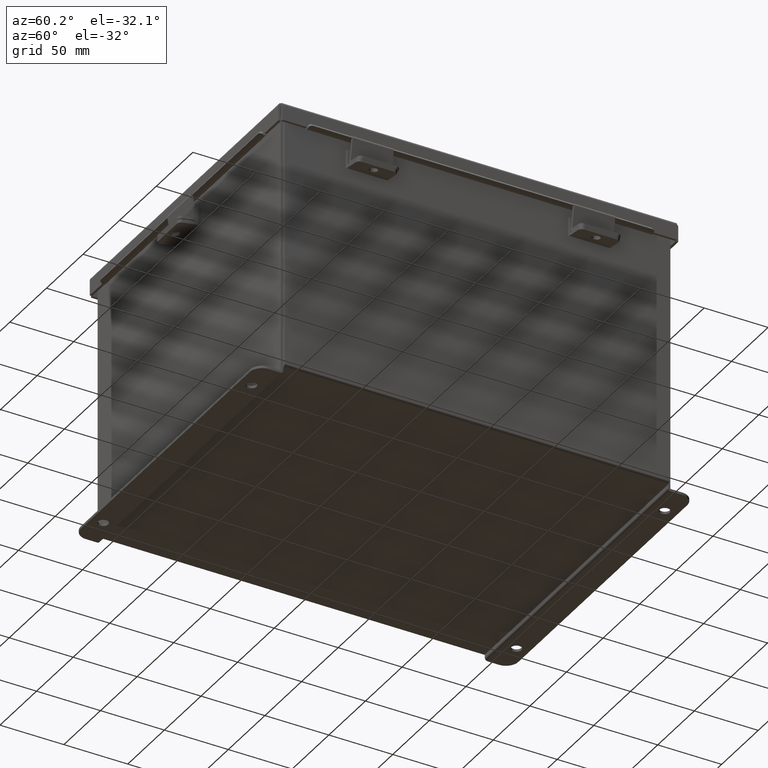
[diagram: clean part render]
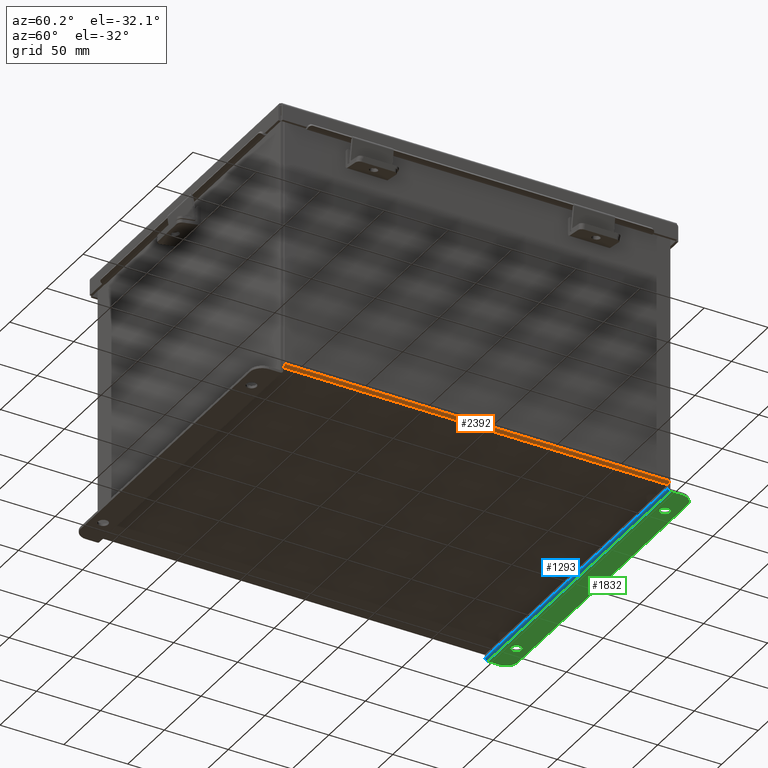
[diagram: same view with three faces highlighted in distinct colors, each labeled with its STEP entity id]
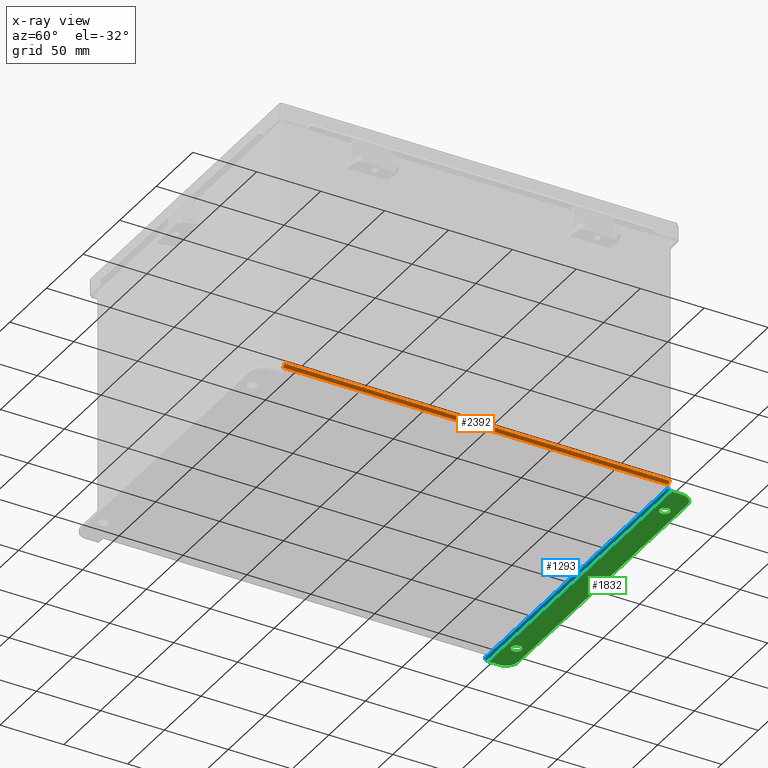
[diagram: x-ray of the same camera — body ghosted, the three highlighted faces saturated]
A machine part, auxiliary view with three faces highlighted in distinct colors.
The next image is the same camera in x-ray (body ghosted, the three faces saturated) — at least one of them is partly hidden behind the body in this view.
Their STEP definitions:

[orange] entity #2392 — the highlighted cylindrical surface (edge-blend (fillet) strip) has radius 2.2276 mm, axis along (0, 1, 0).
#75 = CARTESIAN_POINT ( 'NONE',  ( 4.912300000000000100, 5.925299999999997300, -0.07469999999999994700 ) ) ;
#308 = DIRECTION ( 'NONE',  ( 0.0000000000000000000, 1.000000000000000000, 0.0000000000000000000 ) ) ;
#767 = FACE_OUTER_BOUND ( 'NONE', #6413, .T. ) ;
#1550 = DIRECTION ( 'NONE',  ( 1.000000000000000000, 0.0000000000000000000, -3.480030137311043200E-015 ) ) ;
#1715 = CYLINDRICAL_SURFACE ( 'NONE', #2982, 0.08770000000000026400 ) ;
#2161 = VERTEX_POINT ( 'NONE', #8694 ) ;
#2247 = CIRCLE ( 'NONE', #6147, 0.08770000000000009700 ) ;
#2392 = ADVANCED_FACE ( 'NONE', ( #767 ), #1715, .T. ) ;
#2431 = CARTESIAN_POINT ( 'NONE',  ( 5.000000000000000000, -5.925300000000000000, 0.01299999999999984300 ) ) ;
#2682 = VERTEX_POINT ( 'NONE', #75 ) ;
#2734 = ORIENTED_EDGE ( 'NONE', *, *, #3490, .F. ) ;
#2754 = VERTEX_POINT ( 'NONE', #9206 ) ;
#2982 = AXIS2_PLACEMENT_3D ( 'NONE', #4200, #7963, #1550 ) ;
#3069 = CARTESIAN_POINT ( 'NONE',  ( 4.912300000000000100, -5.925300000000000000, 0.01300000000000015000 ) ) ;
#3178 = DIRECTION ( 'NONE',  ( -0.0000000000000000000, -1.000000000000000000, -0.0000000000000000000 ) ) ;
#3295 = DIRECTION ( 'NONE',  ( 0.0000000000000000000, 0.0000000000000000000, 1.000000000000000000 ) ) ;
#3490 = EDGE_CURVE ( 'NONE', #2754, #2161, #2247, .T. ) ;
#3609 = ORIENTED_EDGE ( 'NONE', *, *, #9395, .T. ) ;
#3648 = EDGE_CURVE ( 'NONE', #5035, #2682, #7063, .T. ) ;
#3749 = DIRECTION ( 'NONE',  ( -0.0000000000000000000, -1.000000000000000000, -0.0000000000000000000 ) ) ;
#3996 = LINE ( 'NONE', #6204, #5771 ) ;
#4008 = DIRECTION ( 'NONE',  ( 0.0000000000000000000, 0.0000000000000000000, 1.000000000000000000 ) ) ;
#4200 = CARTESIAN_POINT ( 'NONE',  ( 4.912300000000000100, 5.925300000000000000, 0.01300000000000015000 ) ) ;
#4210 = EDGE_CURVE ( 'NONE', #2682, #2754, #3996, .T. ) ;
#4445 = ORIENTED_EDGE ( 'NONE', *, *, #3648, .F. ) ;
#4981 = ORIENTED_EDGE ( 'NONE', *, *, #4210, .F. ) ;
#5035 = VERTEX_POINT ( 'NONE', #9258 ) ;
#5150 = AXIS2_PLACEMENT_3D ( 'NONE', #7737, #308, #3295 ) ;
#5280 = VECTOR ( 'NONE', #3178, 39.37007874015748100 ) ;
#5771 = VECTOR ( 'NONE', #7685, 39.37007874015748100 ) ;
#6147 = AXIS2_PLACEMENT_3D ( 'NONE', #3069, #3749, #4008 ) ;
#6204 = CARTESIAN_POINT ( 'NONE',  ( 4.912300000000000100, 5.925300000000000000, -0.07469999999999994700 ) ) ;
#6413 = EDGE_LOOP ( 'NONE', ( #4981, #4445, #3609, #2734 ) ) ;
#7063 = CIRCLE ( 'NONE', #5150, 0.08770000000000009700 ) ;
#7513 = LINE ( 'NONE', #2431, #5280 ) ;
#7685 = DIRECTION ( 'NONE',  ( -0.0000000000000000000, -1.000000000000000000, -0.0000000000000000000 ) ) ;
#7737 = CARTESIAN_POINT ( 'NONE',  ( 4.912300000000000100, 5.925299999999997300, 0.01300000000000015000 ) ) ;
#7963 = DIRECTION ( 'NONE',  ( 0.0000000000000000000, 1.000000000000000000, 0.0000000000000000000 ) ) ;
#8694 = CARTESIAN_POINT ( 'NONE',  ( 5.000000000000000000, -5.925300000000000000, 0.01299999999999984300 ) ) ;
#9206 = CARTESIAN_POINT ( 'NONE',  ( 4.912300000000000100, -5.925300000000000000, -0.07470000000000000300 ) ) ;
#9258 = CARTESIAN_POINT ( 'NONE',  ( 5.000000000000000000, 5.925299999999998200, 0.01299999999999984300 ) ) ;
#9395 = EDGE_CURVE ( 'NONE', #5035, #2161, #7513, .T. ) ;

[blue] entity #1293 — the highlighted cylindrical surface (edge-blend (fillet) strip) has radius 2.2276 mm, axis along (-1, -0, 0).
#59 = EDGE_CURVE ( 'NONE', #6306, #4234, #1200, .T. ) ;
#123 = VERTEX_POINT ( 'NONE', #2802 ) ;
#422 = VERTEX_POINT ( 'NONE', #6302 ) ;
#918 = DIRECTION ( 'NONE',  ( 1.000000000000000000, 8.208677865577646300E-017, -0.0000000000000000000 ) ) ;
#1094 = ORIENTED_EDGE ( 'NONE', *, *, #2906, .F. ) ;
#1200 = CIRCLE ( 'NONE', #3019, 0.08770000000000009700 ) ;
#1293 = ADVANCED_FACE ( 'NONE', ( #7586 ), #6170, .T. ) ;
#1608 = AXIS2_PLACEMENT_3D ( 'NONE', #7788, #5631, #7473 ) ;
#2300 = CARTESIAN_POINT ( 'NONE',  ( 4.925300000000000000, 0.01300000000000010700, -4.187000000000001200 ) ) ;
#2346 = LINE ( 'NONE', #2300, #7393 ) ;
#2802 = CARTESIAN_POINT ( 'NONE',  ( -4.925299999999999100, -0.07470000000000125200, -4.099300000000000400 ) ) ;
#2906 = EDGE_CURVE ( 'NONE', #123, #6306, #4424, .T. ) ;
#3019 = AXIS2_PLACEMENT_3D ( 'NONE', #3244, #3955, #8173 ) ;
#3244 = CARTESIAN_POINT ( 'NONE',  ( 4.925300000000000000, 0.01300000000000010700, -4.099300000000000400 ) ) ;
#3724 = DIRECTION ( 'NONE',  ( 0.0000000000000000000, -1.000000000000000000, 0.0000000000000000000 ) ) ;
#3955 = DIRECTION ( 'NONE',  ( 1.000000000000000000, 8.208677865577646300E-017, -0.0000000000000000000 ) ) ;
#4234 = VERTEX_POINT ( 'NONE', #8357 ) ;
#4363 = DIRECTION ( 'NONE',  ( -1.000000000000000000, -8.208677865577646300E-017, 0.0000000000000000000 ) ) ;
#4424 = LINE ( 'NONE', #8651, #5844 ) ;
#4530 = EDGE_CURVE ( 'NONE', #422, #123, #9085, .T. ) ;
#5370 = CARTESIAN_POINT ( 'NONE',  ( -4.925299999999999100, 0.01299999999999901400, -4.099300000000000400 ) ) ;
#5631 = DIRECTION ( 'NONE',  ( -1.000000000000000000, -8.208677865577646300E-017, 0.0000000000000000000 ) ) ;
#5844 = VECTOR ( 'NONE', #918, 39.37007874015748100 ) ;
#6170 = CYLINDRICAL_SURFACE ( 'NONE', #1608, 0.08770000000000026400 ) ;
#6302 = CARTESIAN_POINT ( 'NONE',  ( -4.925299999999999100, 0.01300000000000010700, -4.187000000000001200 ) ) ;
#6306 = VERTEX_POINT ( 'NONE', #7227 ) ;
#6703 = DIRECTION ( 'NONE',  ( 1.000000000000000000, 5.546561617899952800E-017, -2.053722313309188000E-031 ) ) ;
#6953 = ORIENTED_EDGE ( 'NONE', *, *, #59, .F. ) ;
#7055 = EDGE_CURVE ( 'NONE', #422, #4234, #2346, .T. ) ;
#7227 = CARTESIAN_POINT ( 'NONE',  ( 4.925300000000000000, -0.07470000000000015500, -4.099300000000000400 ) ) ;
#7393 = VECTOR ( 'NONE', #6703, 39.37007874015748100 ) ;
#7438 = ORIENTED_EDGE ( 'NONE', *, *, #7055, .T. ) ;
#7473 = DIRECTION ( 'NONE',  ( 0.0000000000000000000, -3.699053013085864000E-015, -1.000000000000000000 ) ) ;
#7586 = FACE_OUTER_BOUND ( 'NONE', #8342, .T. ) ;
#7788 = CARTESIAN_POINT ( 'NONE',  ( -4.925300000000000000, 0.01299999999999901400, -4.099300000000000400 ) ) ;
#8173 = DIRECTION ( 'NONE',  ( 0.0000000000000000000, -1.000000000000000000, 0.0000000000000000000 ) ) ;
#8342 = EDGE_LOOP ( 'NONE', ( #1094, #9169, #7438, #6953 ) ) ;
#8357 = CARTESIAN_POINT ( 'NONE',  ( 4.925300000000000000, 0.01300000000000010700, -4.187000000000001200 ) ) ;
#8651 = CARTESIAN_POINT ( 'NONE',  ( -4.925300000000000000, -0.07470000000000125200, -4.099300000000000400 ) ) ;
#9085 = CIRCLE ( 'NONE', #9472, 0.08770000000000009700 ) ;
#9169 = ORIENTED_EDGE ( 'NONE', *, *, #4530, .F. ) ;
#9472 = AXIS2_PLACEMENT_3D ( 'NONE', #5370, #4363, #3724 ) ;

[green] entity #1832 — the highlighted planar face has unit normal (0, 0, 1).
#58 = CARTESIAN_POINT ( 'NONE',  ( -4.925300000000000000, 0.3627999999999997300, -4.187000000000002100 ) ) ;
#289 = ORIENTED_EDGE ( 'NONE', *, *, #1693, .F. ) ;
#399 = DIRECTION ( 'NONE',  ( 0.0000000000000000000, 1.000000000000000000, -3.502369222646487000E-015 ) ) ;
#422 = VERTEX_POINT ( 'NONE', #6302 ) ;
#584 = LINE ( 'NONE', #6859, #8331 ) ;
#597 = CARTESIAN_POINT ( 'NONE',  ( 0.0000000000000000000, -1.529834876451987200E-014, -4.187000000000001200 ) ) ;
#1191 = PLANE ( 'NONE',  #2341 ) ;
#1511 = DIRECTION ( 'NONE',  ( 0.0000000000000000000, 1.000000000000000000, -3.502369222646487000E-015 ) ) ;
#1587 = CARTESIAN_POINT ( 'NONE',  ( -3.987800000000000900, 0.3627999999999954000, -4.187000000000002100 ) ) ;
#1589 = DIRECTION ( 'NONE',  ( -0.0000000000000000000, -3.702694488566362300E-015, -1.000000000000000000 ) ) ;
#1693 = EDGE_CURVE ( 'NONE', #4731, #2781, #3017, .T. ) ;
#1745 = CIRCLE ( 'NONE', #1946, 0.1560000000000001900 ) ;
#1798 = VECTOR ( 'NONE', #3282, 39.37007874015748100 ) ;
#1809 = AXIS2_PLACEMENT_3D ( 'NONE', #2462, #7701, #3226 ) ;
#1832 = ADVANCED_FACE ( 'NONE', ( #3149, #2930, #3396 ), #1191, .F. ) ;
#1875 = DIRECTION ( 'NONE',  ( 0.0000000000000000000, 3.702694488566362300E-015, 1.000000000000000000 ) ) ;
#1946 = AXIS2_PLACEMENT_3D ( 'NONE', #9376, #4906, #399 ) ;
#1992 = ORIENTED_EDGE ( 'NONE', *, *, #7185, .T. ) ;
#2199 = DIRECTION ( 'NONE',  ( 0.0000000000000000000, -1.000000000000000000, 4.370956789862820400E-015 ) ) ;
#2300 = CARTESIAN_POINT ( 'NONE',  ( 4.925300000000000000, 0.01300000000000010700, -4.187000000000001200 ) ) ;
#2326 = DIRECTION ( 'NONE',  ( 0.0000000000000000000, -1.000000000000000000, 3.702694488566362300E-015 ) ) ;
#2341 = AXIS2_PLACEMENT_3D ( 'NONE', #597, #1875, #2326 ) ;
#2346 = LINE ( 'NONE', #2300, #7393 ) ;
#2365 = DIRECTION ( 'NONE',  ( 0.0000000000000000000, -1.000000000000000000, 3.702694488566362300E-015 ) ) ;
#2462 = CARTESIAN_POINT ( 'NONE',  ( -4.550300000000000000, 0.3627999999999997300, -4.187000000000002100 ) ) ;
#2534 = EDGE_CURVE ( 'NONE', #7897, #8296, #7240, .T. ) ;
#2539 = CARTESIAN_POINT ( 'NONE',  ( 4.550300000000000000, 0.3627999999999997300, -4.187000000000002100 ) ) ;
#2667 = DIRECTION ( 'NONE',  ( 0.0000000000000000000, 1.000000000000000000, -3.502369222646487000E-015 ) ) ;
#2693 = EDGE_LOOP ( 'NONE', ( #1992, #5703, #2758, #5312, #8687, #4167 ) ) ;
#2716 = VECTOR ( 'NONE', #3909, 39.37007874015748100 ) ;
#2758 = ORIENTED_EDGE ( 'NONE', *, *, #8458, .T. ) ;
#2781 = VERTEX_POINT ( 'NONE', #4796 ) ;
#2930 = FACE_BOUND ( 'NONE', #9196, .T. ) ;
#3017 = CIRCLE ( 'NONE', #5484, 0.1560000000000001900 ) ;
#3085 = EDGE_CURVE ( 'NONE', #422, #4500, #5458, .T. ) ;
#3149 = FACE_BOUND ( 'NONE', #5094, .T. ) ;
#3187 = ORIENTED_EDGE ( 'NONE', *, *, #4661, .F. ) ;
#3226 = DIRECTION ( 'NONE',  ( 0.0000000000000000000, -1.000000000000000000, 4.370956789862820400E-015 ) ) ;
#3282 = DIRECTION ( 'NONE',  ( 0.0000000000000000000, 1.000000000000000000, -3.702694488566362300E-015 ) ) ;
#3396 = FACE_OUTER_BOUND ( 'NONE', #2693, .T. ) ;
#3411 = CARTESIAN_POINT ( 'NONE',  ( 4.550300000000000000, 0.7378000000000000100, -4.187000000000003800 ) ) ;
#3576 = DIRECTION ( 'NONE',  ( 0.0000000000000000000, -3.702694488566362300E-015, -1.000000000000000000 ) ) ;
#3909 = DIRECTION ( 'NONE',  ( 1.000000000000000000, 0.0000000000000000000, -0.0000000000000000000 ) ) ;
#3948 = VERTEX_POINT ( 'NONE', #4920 ) ;
#4167 = ORIENTED_EDGE ( 'NONE', *, *, #7254, .T. ) ;
#4234 = VERTEX_POINT ( 'NONE', #8357 ) ;
#4485 = CARTESIAN_POINT ( 'NONE',  ( -3.987800000000000900, 0.3627999999999954000, -4.187000000000002100 ) ) ;
#4500 = VERTEX_POINT ( 'NONE', #58 ) ;
#4650 = CARTESIAN_POINT ( 'NONE',  ( 0.0000000000000000000, 0.7378000000000000100, -4.187000000000003800 ) ) ;
#4661 = EDGE_CURVE ( 'NONE', #7695, #3948, #5139, .T. ) ;
#4731 = VERTEX_POINT ( 'NONE', #4924 ) ;
#4796 = CARTESIAN_POINT ( 'NONE',  ( -3.987800000000000900, 0.5187999999999956000, -4.187000000000002900 ) ) ;
#4906 = DIRECTION ( 'NONE',  ( 0.0000000000000000000, -3.702694488566362300E-015, -1.000000000000000000 ) ) ;
#4911 = LINE ( 'NONE', #4650, #2716 ) ;
#4920 = CARTESIAN_POINT ( 'NONE',  ( 3.987800000000000000, 0.2067999999999952100, -4.187000000000001200 ) ) ;
#4924 = CARTESIAN_POINT ( 'NONE',  ( -3.987800000000000900, 0.2067999999999952100, -4.187000000000001200 ) ) ;
#5094 = EDGE_LOOP ( 'NONE', ( #7420, #289 ) ) ;
#5126 = ORIENTED_EDGE ( 'NONE', *, *, #6226, .F. ) ;
#5139 = CIRCLE ( 'NONE', #9547, 0.1560000000000001900 ) ;
#5248 = DIRECTION ( 'NONE',  ( 0.0000000000000000000, 1.000000000000000000, -3.502369222646487000E-015 ) ) ;
#5270 = AXIS2_PLACEMENT_3D ( 'NONE', #4485, #9698, #5248 ) ;
#5312 = ORIENTED_EDGE ( 'NONE', *, *, #7055, .F. ) ;
#5458 = LINE ( 'NONE', #8548, #1798 ) ;
#5484 = AXIS2_PLACEMENT_3D ( 'NONE', #1587, #6807, #1511 ) ;
#5703 = ORIENTED_EDGE ( 'NONE', *, *, #2534, .T. ) ;
#5842 = CARTESIAN_POINT ( 'NONE',  ( 3.987800000000000000, 0.3627999999999954000, -4.187000000000002100 ) ) ;
#5953 = CARTESIAN_POINT ( 'NONE',  ( -4.550300000000000000, 0.7378000000000000100, -4.187000000000003800 ) ) ;
#6226 = EDGE_CURVE ( 'NONE', #3948, #7695, #1745, .T. ) ;
#6302 = CARTESIAN_POINT ( 'NONE',  ( -4.925299999999999100, 0.01300000000000010700, -4.187000000000001200 ) ) ;
#6448 = CIRCLE ( 'NONE', #1809, 0.3750000000000000600 ) ;
#6703 = DIRECTION ( 'NONE',  ( 1.000000000000000000, 5.546561617899952800E-017, -2.053722313309188000E-031 ) ) ;
#6807 = DIRECTION ( 'NONE',  ( 0.0000000000000000000, -3.702694488566362300E-015, -1.000000000000000000 ) ) ;
#6859 = CARTESIAN_POINT ( 'NONE',  ( 4.925300000000000000, -1.529834876451987200E-014, -4.187000000000001200 ) ) ;
#7026 = CIRCLE ( 'NONE', #5270, 0.1560000000000001900 ) ;
#7055 = EDGE_CURVE ( 'NONE', #422, #4234, #2346, .T. ) ;
#7185 = EDGE_CURVE ( 'NONE', #9182, #7897, #4911, .T. ) ;
#7240 = CIRCLE ( 'NONE', #8068, 0.3750000000000000600 ) ;
#7254 = EDGE_CURVE ( 'NONE', #4500, #9182, #6448, .T. ) ;
#7262 = CARTESIAN_POINT ( 'NONE',  ( 4.925300000000000000, 0.3627999999999997300, -4.187000000000002100 ) ) ;
#7393 = VECTOR ( 'NONE', #6703, 39.37007874015748100 ) ;
#7417 = EDGE_CURVE ( 'NONE', #2781, #4731, #7026, .T. ) ;
#7420 = ORIENTED_EDGE ( 'NONE', *, *, #7417, .F. ) ;
#7695 = VERTEX_POINT ( 'NONE', #9201 ) ;
#7701 = DIRECTION ( 'NONE',  ( -0.0000000000000000000, -3.702694488566362300E-015, -1.000000000000000000 ) ) ;
#7897 = VERTEX_POINT ( 'NONE', #3411 ) ;
#8068 = AXIS2_PLACEMENT_3D ( 'NONE', #2539, #1589, #2199 ) ;
#8296 = VERTEX_POINT ( 'NONE', #7262 ) ;
#8331 = VECTOR ( 'NONE', #2365, 39.37007874015748100 ) ;
#8357 = CARTESIAN_POINT ( 'NONE',  ( 4.925300000000000000, 0.01300000000000010700, -4.187000000000001200 ) ) ;
#8458 = EDGE_CURVE ( 'NONE', #8296, #4234, #584, .T. ) ;
#8548 = CARTESIAN_POINT ( 'NONE',  ( -4.925300000000000000, -1.529834876451987200E-014, -4.187000000000001200 ) ) ;
#8687 = ORIENTED_EDGE ( 'NONE', *, *, #3085, .T. ) ;
#9182 = VERTEX_POINT ( 'NONE', #5953 ) ;
#9196 = EDGE_LOOP ( 'NONE', ( #3187, #5126 ) ) ;
#9201 = CARTESIAN_POINT ( 'NONE',  ( 3.987800000000000000, 0.5187999999999956000, -4.187000000000002900 ) ) ;
#9376 = CARTESIAN_POINT ( 'NONE',  ( 3.987800000000000000, 0.3627999999999954000, -4.187000000000002100 ) ) ;
#9547 = AXIS2_PLACEMENT_3D ( 'NONE', #5842, #3576, #2667 ) ;
#9698 = DIRECTION ( 'NONE',  ( 0.0000000000000000000, -3.702694488566362300E-015, -1.000000000000000000 ) ) ;